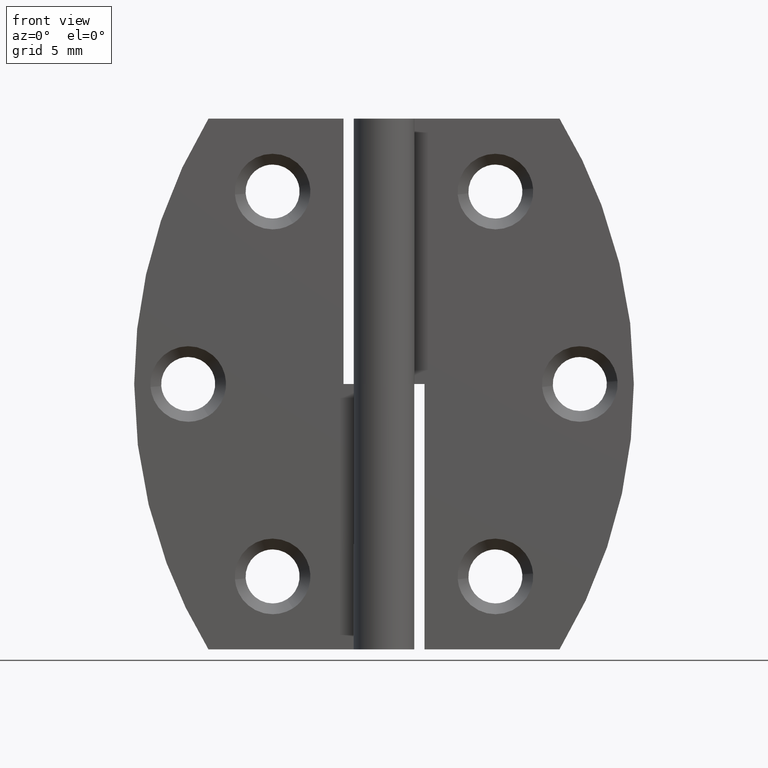
[diagram: clean part render]
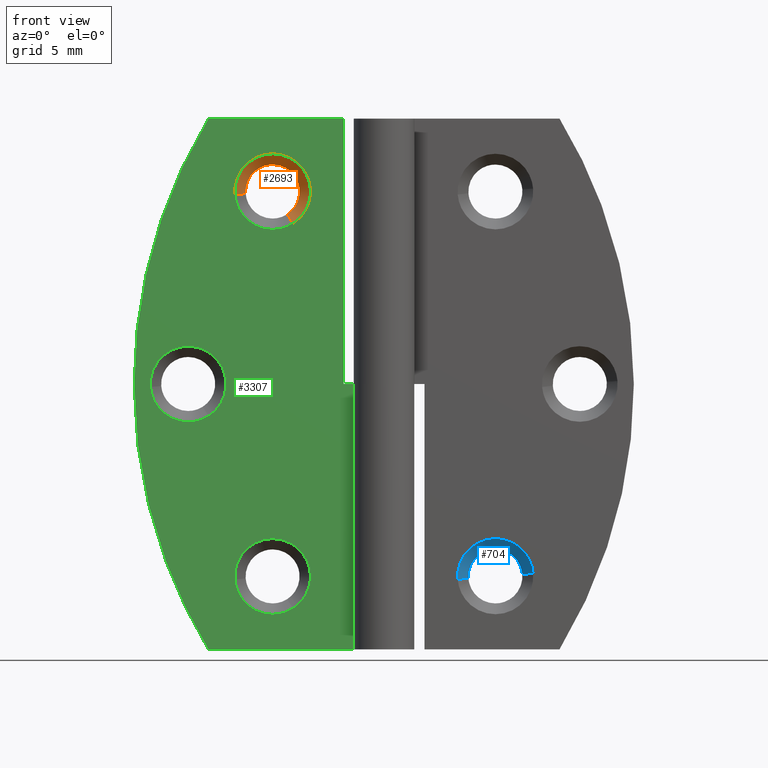
[diagram: same view with three faces highlighted in distinct colors, each labeled with its STEP entity id]
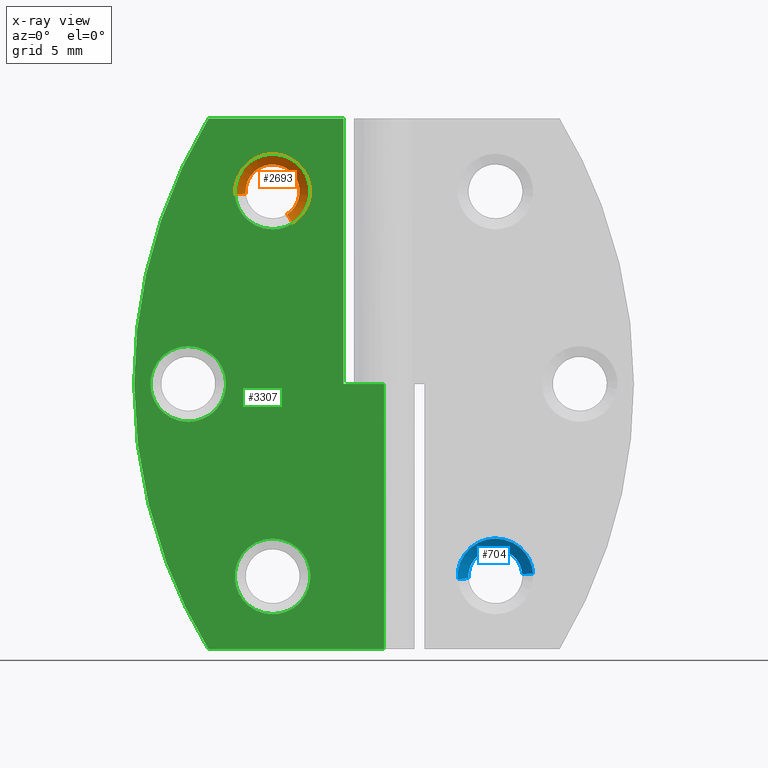
[diagram: x-ray of the same camera — body ghosted, the three highlighted faces saturated]
A machine part, front view with three faces highlighted in distinct colors.
The next image is the same camera in x-ray (body ghosted, the three faces saturated) — at least one of them is partly hidden behind the body in this view.
Their STEP definitions:

[orange] entity #2693 — the highlighted face is a freeform B-spline surface patch.
#2557=CARTESIAN_POINT('',(-7.185055428976516,2.070000000000001,32.230789703248583));
#2558=CARTESIAN_POINT('',(-6.182829668059569,2.070000000000000,32.870199327319853));
#2559=CARTESIAN_POINT('',(-6.276103679208408,2.070000000000001,34.055358009541230));
#2560=CARTESIAN_POINT('',(-6.431452688749542,2.070000000000001,36.029254330332819));
#2561=CARTESIAN_POINT('',(-8.405349009541133,2.070000000000001,35.873905320791692));
#2562=CARTESIAN_POINT('',(-10.379245330332726,2.070000000000001,35.718556311250552));
#2563=CARTESIAN_POINT('',(-10.223896320791590,2.070000000000001,33.744659990458963));
#2564=CARTESIAN_POINT('',(-6.732991837084981,1.229500000000000,31.522214542178048));
#2565=CARTESIAN_POINT('',(-5.305326302405056,1.229500000000000,32.433050322326039));
#2566=CARTESIAN_POINT('',(-5.438194660205712,1.229500000000000,34.121302879500483));
#2567=CARTESIAN_POINT('',(-5.659488539706101,1.229500000000000,36.933108219294773));
#2568=CARTESIAN_POINT('',(-8.471293879500388,1.229500000000000,36.711814339794387));
#2569=CARTESIAN_POINT('',(-11.283099219294677,1.229500000000000,36.490520460294000));
#2570=CARTESIAN_POINT('',(-11.061805339794290,1.229500000000000,33.678715120499710));
#2578=(BOUNDED_SURFACE()B_SPLINE_SURFACE(2,1,((#2557,#2564),(#2558,#2565),(#2559,#2566),(#2560,#2567),(#2561,#2568),(#2562,#2569),(#2563,#2570)),.UNSPECIFIED.,.F.,.F.,.U.)B_SPLINE_SURFACE_WITH_KNOTS((3,2,2,3),(2,2),(0.0,3.177747039271418,7.850904449964681,12.524061860657939),(0.0,1.0),.UNSPECIFIED.)GEOMETRIC_REPRESENTATION_ITEM()RATIONAL_B_SPLINE_SURFACE(((0.872532871172386,0.872532871172386),(0.800832611206852,0.800832611206852),(1.0,1.0),(0.707106781186548,0.707106781186548),(1.0,1.0),(0.707106781186548,0.707106781186548),(1.0,1.0)))REPRESENTATION_ITEM('')SURFACE());
#2579=CARTESIAN_POINT('',(-6.263980947286561,2.050000000000000,34.136077469430496));
#2580=VERTEX_POINT('',#2579);
#2581=CARTESIAN_POINT('',(-7.174298413050167,2.049999999996619,32.213928902303927));
#2582=VERTEX_POINT('',#2581);
#2583=CARTESIAN_POINT('',(-6.263980947286561,2.050000000000000,34.136077469430496));
#2584=CARTESIAN_POINT('',(-6.250000000000001,2.050000000000000,34.018457239422048));
#2585=CARTESIAN_POINT('',(-6.250000000000000,2.050000000000000,33.900009000000097));
#2586=CARTESIAN_POINT('',(-6.250000000000000,2.050000000000000,32.803621688056460));
#2587=CARTESIAN_POINT('',(-7.174298413050168,2.049999999996620,32.213928902303927));
#2595=(BOUNDED_CURVE()B_SPLINE_CURVE(2,(#2583,#2584,#2585,#2586,#2587),.UNSPECIFIED.,.F.,.U.)B_SPLINE_CURVE_WITH_KNOTS((3,2,3),(0.229562473495751,0.250000000000000,0.407950112617498),.UNSPECIFIED.)CURVE()GEOMETRIC_REPRESENTATION_ITEM()RATIONAL_B_SPLINE_CURVE((0.956026754148893,0.976055948310340,1.0,0.814949932414055,0.863729296948715))REPRESENTATION_ITEM(''));
#2596=EDGE_CURVE('',#2580,#2582,#2595,.T.);
#2597=ORIENTED_EDGE('',*,*,#2596,.T.);
#2598=CARTESIAN_POINT('',(-6.744017778316859,1.249999999997908,31.539496863198838));
#2599=VERTEX_POINT('',#2598);
#2600=CARTESIAN_POINT('',(-7.174298413050167,2.049999999996619,32.213928902303927));
#2601=CARTESIAN_POINT('',(-6.744017778316859,1.249999999997908,31.539496863198838));
#2602=QUASI_UNIFORM_CURVE('',1,(#2600,#2601),.UNSPECIFIED.,.F.,.U.);
#2603=EDGE_CURVE('',#2582,#2599,#2602,.T.);
#2604=ORIENTED_EDGE('',*,*,#2603,.T.);
#2605=CARTESIAN_POINT('',(-8.250000000000000,1.250000000000000,36.700009000000087));
#2606=VERTEX_POINT('',#2605);
#2607=CARTESIAN_POINT('',(-8.250000000000000,1.250000000000000,36.700009000000087));
#2608=CARTESIAN_POINT('',(-5.450000000000000,1.250000000000000,36.700009000000094));
#2609=CARTESIAN_POINT('',(-5.450000000000000,1.250000000000000,33.900009000000097));
#2610=CARTESIAN_POINT('',(-5.450000000000000,1.250000000000001,32.365066763209263));
#2611=CARTESIAN_POINT('',(-6.744017778316860,1.249999999997908,31.539496863198842));
#2619=(BOUNDED_CURVE()B_SPLINE_CURVE(2,(#2607,#2608,#2609,#2610,#2611),.UNSPECIFIED.,.F.,.U.)B_SPLINE_CURVE_WITH_KNOTS((3,2,3),(0.0,0.250000000000000,0.407950112623347),.UNSPECIFIED.)CURVE()GEOMETRIC_REPRESENTATION_ITEM()RATIONAL_B_SPLINE_CURVE((1.0,0.707106781186547,1.0,0.814949932407203,0.863729296952327))REPRESENTATION_ITEM(''));
#2620=EDGE_CURVE('',#2606,#2599,#2619,.T.);
#2621=ORIENTED_EDGE('',*,*,#2620,.F.);
#2622=CARTESIAN_POINT('',(-11.041368534459471,1.249999999982987,33.680323531830581));
#2623=VERTEX_POINT('',#2622);
#2624=CARTESIAN_POINT('',(-11.041368534459476,1.249999999982987,33.680323531830581));
#2625=CARTESIAN_POINT('',(-11.050000000000001,1.250000000000000,33.789996700247798));
#2626=CARTESIAN_POINT('',(-11.050000000000001,1.250000000000000,33.900009000000097));
#2627=CARTESIAN_POINT('',(-11.050000000000001,1.250000000000000,36.700009000000094));
#2628=CARTESIAN_POINT('',(-8.250000000000000,1.250000000000000,36.700009000000087));
#2636=(BOUNDED_CURVE()B_SPLINE_CURVE(2,(#2624,#2625,#2626,#2627,#2628),.UNSPECIFIED.,.F.,.U.)B_SPLINE_CURVE_WITH_KNOTS((3,2,3),(0.736331300616773,0.750000000000000,1.0),.UNSPECIFIED.)CURVE()GEOMETRIC_REPRESENTATION_ITEM()RATIONAL_B_SPLINE_CURVE((0.969723356138437,0.983986122562613,1.0,0.707106781186547,1.0))REPRESENTATION_ITEM(''));
#2637=EDGE_CURVE('',#2623,#2606,#2636,.T.);
#2638=ORIENTED_EDGE('',*,*,#2637,.F.);
#2639=CARTESIAN_POINT('',(-10.243834667466841,2.049999999998565,33.743090808533488));
#2640=VERTEX_POINT('',#2639);
#2641=CARTESIAN_POINT('',(-10.243834667466841,2.049999999998565,33.743090808533488));
#2642=CARTESIAN_POINT('',(-11.041368534459471,1.249999999982987,33.680323531830581));
#2643=QUASI_UNIFORM_CURVE('',1,(#2641,#2642),.UNSPECIFIED.,.F.,.U.);
#2644=EDGE_CURVE('',#2640,#2623,#2643,.T.);
#2645=ORIENTED_EDGE('',*,*,#2644,.F.);
#2646=CARTESIAN_POINT('',(-10.246269596835971,2.050000000000000,33.777911920803490));
#2647=VERTEX_POINT('',#2646);
#2648=CARTESIAN_POINT('',(-10.243834667466835,2.049999999998565,33.743090808533481));
#2649=CARTESIAN_POINT('',(-10.245204071766414,2.050000000000001,33.760490739946448));
#2650=CARTESIAN_POINT('',(-10.246269596835969,2.050000000000000,33.777911920803490));
#2658=(BOUNDED_CURVE()B_SPLINE_CURVE(2,(#2648,#2649,#2650),.UNSPECIFIED.,.F.,.U.)B_SPLINE_CURVE_WITH_KNOTS((3,3),(0.736331300630909,0.739332962220032),.UNSPECIFIED.)CURVE()GEOMETRIC_REPRESENTATION_ITEM()RATIONAL_B_SPLINE_CURVE((0.969723356167937,0.972855475540470,0.976072041626189))REPRESENTATION_ITEM(''));
#2659=EDGE_CURVE('',#2640,#2647,#2658,.T.);
#2660=ORIENTED_EDGE('',*,*,#2659,.T.);
#2661=CARTESIAN_POINT('',(-8.250000000000000,2.050000000000000,35.900009000000097));
#2662=VERTEX_POINT('',#2661);
#2663=CARTESIAN_POINT('',(-10.246269596835969,2.050000000000000,33.777911920803490));
#2664=CARTESIAN_POINT('',(-10.249999999999996,2.050000000000001,33.838903473275671));
#2665=CARTESIAN_POINT('',(-10.250000000000000,2.050000000000000,33.900009000000097));
#2666=CARTESIAN_POINT('',(-10.250000000000000,2.050000000000001,35.900009000000104));
#2667=CARTESIAN_POINT('',(-8.250000000000000,2.050000000000000,35.900009000000097));
#2675=(BOUNDED_CURVE()B_SPLINE_CURVE(2,(#2663,#2664,#2665,#2666,#2667),.UNSPECIFIED.,.F.,.U.)B_SPLINE_CURVE_WITH_KNOTS((3,2,3),(0.739332962220032,0.750000000000000,1.0),.UNSPECIFIED.)CURVE()GEOMETRIC_REPRESENTATION_ITEM()RATIONAL_B_SPLINE_CURVE((0.976072041626189,0.987502787877682,1.0,0.707106781186548,1.0))REPRESENTATION_ITEM(''));
#2676=EDGE_CURVE('',#2647,#2662,#2675,.T.);
#2677=ORIENTED_EDGE('',*,*,#2676,.T.);
#2678=CARTESIAN_POINT('',(-8.250000000000000,2.050000000000000,35.900009000000097));
#2679=CARTESIAN_POINT('',(-6.473650948307835,2.050000000000000,35.900009000000111));
#2680=CARTESIAN_POINT('',(-6.263980947286561,2.050000000000000,34.136077469430511));
#2688=(BOUNDED_CURVE()B_SPLINE_CURVE(2,(#2678,#2679,#2680),.UNSPECIFIED.,.F.,.U.)B_SPLINE_CURVE_WITH_KNOTS((3,3),(0.0,0.229562473495750),.UNSPECIFIED.)CURVE()GEOMETRIC_REPRESENTATION_ITEM()RATIONAL_B_SPLINE_CURVE((1.0,0.731050832876207,0.956026754148893))REPRESENTATION_ITEM(''));
#2689=EDGE_CURVE('',#2662,#2580,#2688,.T.);
#2690=ORIENTED_EDGE('',*,*,#2689,.T.);
#2691=EDGE_LOOP('',(#2597,#2604,#2621,#2638,#2645,#2660,#2677,#2690));
#2692=FACE_OUTER_BOUND('',#2691,.T.);
#2693=ADVANCED_FACE('',(#2692),#2578,.F.);

[blue] entity #704 — the highlighted face is a freeform B-spline surface patch.
#509=CARTESIAN_POINT('',(6.253730392787248,2.049999999999717,5.277905090464125));
#510=VERTEX_POINT('',#509);
#554=CARTESIAN_POINT('',(10.243834667485380,2.049999999951914,5.556920191826806));
#555=VERTEX_POINT('',#554);
#571=CARTESIAN_POINT('',(8.250000000000101,2.050000000000000,7.400002000000000));
#572=VERTEX_POINT('',#571);
#573=CARTESIAN_POINT('',(8.250000000000101,2.050000000000000,7.400002000000000));
#574=CARTESIAN_POINT('',(10.098780982633171,2.050000000000000,7.400001999999998));
#575=CARTESIAN_POINT('',(10.243834667485384,2.049999999951914,5.556920191826806));
#583=(BOUNDED_CURVE()B_SPLINE_CURVE(2,(#573,#574,#575),.UNSPECIFIED.,.F.,.U.)B_SPLINE_CURVE_WITH_KNOTS((3,3),(0.0,0.236331300569601),.UNSPECIFIED.)CURVE()GEOMETRIC_REPRESENTATION_ITEM()RATIONAL_B_SPLINE_CURVE((1.0,0.723120658679201,0.969723356039992))REPRESENTATION_ITEM(''));
#584=EDGE_CURVE('',#572,#555,#583,.T.);
#586=CARTESIAN_POINT('',(6.253730392787248,2.049999999999717,5.277905090464125));
#587=CARTESIAN_POINT('',(6.250000000000101,2.050000000000000,5.338896558407419));
#588=CARTESIAN_POINT('',(6.250000000000101,2.050000000000000,5.400002000000000));
#589=CARTESIAN_POINT('',(6.250000000000101,2.050000000000001,7.400001999999999));
#590=CARTESIAN_POINT('',(8.250000000000101,2.050000000000000,7.400002000000000));
#598=(BOUNDED_CURVE()B_SPLINE_CURVE(2,(#586,#587,#588,#589,#590),.UNSPECIFIED.,.F.,.U.)B_SPLINE_CURVE_WITH_KNOTS((3,2,3),(0.739332976895560,0.750000000000000,1.0),.UNSPECIFIED.)CURVE()GEOMETRIC_REPRESENTATION_ITEM()RATIONAL_B_SPLINE_CURVE((0.976072073078641,0.987502805071133,1.0,0.707106781186548,1.0))REPRESENTATION_ITEM(''));
#599=EDGE_CURVE('',#510,#572,#598,.T.);
#638=CARTESIAN_POINT('',(10.223896320791690,2.070000000000001,5.555351009541134));
#639=CARTESIAN_POINT('',(10.068547311250558,2.070000000000001,7.529247330332725));
#640=CARTESIAN_POINT('',(8.094650990458968,2.070000000000001,7.373898320791591));
#641=CARTESIAN_POINT('',(6.120754669667377,2.070000000000001,7.218549311250457));
#642=CARTESIAN_POINT('',(6.276103679208510,2.070000000000001,5.244652990458866));
#643=CARTESIAN_POINT('',(11.061805339794390,1.229500000000000,5.621295879500388));
#644=CARTESIAN_POINT('',(10.840511460293998,1.229500000000000,8.433101219294674));
#645=CARTESIAN_POINT('',(8.028706120499713,1.229500000000000,8.211807339794286));
#646=CARTESIAN_POINT('',(5.216900780705428,1.229500000000000,7.990513460293896));
#647=CARTESIAN_POINT('',(5.438194660205816,1.229500000000000,5.178708120499612));
#655=(BOUNDED_SURFACE()B_SPLINE_SURFACE(2,1,((#638,#643),(#639,#644),(#640,#645),(#641,#646),(#642,#647)),.UNSPECIFIED.,.F.,.F.,.U.)B_SPLINE_SURFACE_WITH_KNOTS((3,2,3),(2,2),(0.0,4.673157410693258,9.346314821386516),(0.0,1.0),.UNSPECIFIED.)GEOMETRIC_REPRESENTATION_ITEM()RATIONAL_B_SPLINE_SURFACE(((1.0,1.0),(0.707106781186548,0.707106781186548),(1.0,1.0),(0.707106781186548,0.707106781186548),(1.0,1.0)))REPRESENTATION_ITEM('')SURFACE());
#656=ORIENTED_EDGE('',*,*,#584,.T.);
#657=CARTESIAN_POINT('',(11.041368534459570,1.249999999982986,5.619687468169518));
#658=VERTEX_POINT('',#657);
#659=CARTESIAN_POINT('',(10.243834667485380,2.049999999951914,5.556920191826806));
#660=CARTESIAN_POINT('',(11.041368534459570,1.249999999982986,5.619687468169518));
#661=QUASI_UNIFORM_CURVE('',1,(#659,#660),.UNSPECIFIED.,.F.,.U.);
#662=EDGE_CURVE('',#555,#658,#661,.T.);
#663=ORIENTED_EDGE('',*,*,#662,.T.);
#664=CARTESIAN_POINT('',(8.250000000000101,1.250000000000000,8.200002000000000));
#665=VERTEX_POINT('',#664);
#666=CARTESIAN_POINT('',(8.250000000000101,1.250000000000000,8.200002000000000));
#667=CARTESIAN_POINT('',(10.838293376400850,1.250000000000000,8.200002000000000));
#668=CARTESIAN_POINT('',(11.041368534459572,1.249999999982986,5.619687468169517));
#676=(BOUNDED_CURVE()B_SPLINE_CURVE(2,(#666,#667,#668),.UNSPECIFIED.,.F.,.U.)B_SPLINE_CURVE_WITH_KNOTS((3,3),(0.0,0.236331300616773),.UNSPECIFIED.)CURVE()GEOMETRIC_REPRESENTATION_ITEM()RATIONAL_B_SPLINE_CURVE((1.0,0.723120658623934,0.969723356138438))REPRESENTATION_ITEM(''));
#677=EDGE_CURVE('',#665,#658,#676,.T.);
#678=ORIENTED_EDGE('',*,*,#677,.F.);
#679=CARTESIAN_POINT('',(5.458631465540631,1.249999999982986,5.180316531830481));
#680=VERTEX_POINT('',#679);
#681=CARTESIAN_POINT('',(5.458631465540631,1.249999999982986,5.180316531830481));
#682=CARTESIAN_POINT('',(5.450000000000101,1.250000000000000,5.289989700247703));
#683=CARTESIAN_POINT('',(5.450000000000101,1.250000000000000,5.400002000000000));
#684=CARTESIAN_POINT('',(5.450000000000101,1.250000000000000,8.200002000000000));
#685=CARTESIAN_POINT('',(8.250000000000101,1.250000000000000,8.200002000000000));
#693=(BOUNDED_CURVE()B_SPLINE_CURVE(2,(#681,#682,#683,#684,#685),.UNSPECIFIED.,.F.,.U.)B_SPLINE_CURVE_WITH_KNOTS((3,2,3),(0.736331300616773,0.750000000000000,1.0),.UNSPECIFIED.)CURVE()GEOMETRIC_REPRESENTATION_ITEM()RATIONAL_B_SPLINE_CURVE((0.969723356138437,0.983986122562613,1.0,0.707106781186547,1.0))REPRESENTATION_ITEM(''));
#694=EDGE_CURVE('',#680,#665,#693,.T.);
#695=ORIENTED_EDGE('',*,*,#694,.F.);
#696=CARTESIAN_POINT('',(6.253730392787248,2.049999999999717,5.277905090464125));
#697=CARTESIAN_POINT('',(5.458631465540631,1.249999999982986,5.180316531830481));
#698=QUASI_UNIFORM_CURVE('',1,(#696,#697),.UNSPECIFIED.,.F.,.U.);
#699=EDGE_CURVE('',#510,#680,#698,.T.);
#700=ORIENTED_EDGE('',*,*,#699,.F.);
#701=ORIENTED_EDGE('',*,*,#599,.T.);
#702=EDGE_LOOP('',(#656,#663,#678,#695,#700,#701));
#703=FACE_OUTER_BOUND('',#702,.T.);
#704=ADVANCED_FACE('',(#703),#655,.F.);

[green] entity #3307 — the highlighted face is a freeform B-spline surface patch.
#1910=CARTESIAN_POINT('',(-6.744017778316858,1.249999999997908,3.039489863198744));
#1911=VERTEX_POINT('',#1910);
#1917=CARTESIAN_POINT('',(-8.250000000000000,1.250000000000000,8.200002000000000));
#1918=VERTEX_POINT('',#1917);
#1919=CARTESIAN_POINT('',(-8.250000000000000,1.250000000000000,8.200002000000000));
#1920=CARTESIAN_POINT('',(-5.450000000000000,1.250000000000000,8.200002000000000));
#1921=CARTESIAN_POINT('',(-5.450000000000000,1.250000000000000,5.400002000000000));
#1922=CARTESIAN_POINT('',(-5.450000000000000,1.250000000000001,3.865059763209169));
#1923=CARTESIAN_POINT('',(-6.744017778316858,1.249999999997908,3.039489863198743));
#1931=(BOUNDED_CURVE()B_SPLINE_CURVE(2,(#1919,#1920,#1921,#1922,#1923),.UNSPECIFIED.,.F.,.U.)B_SPLINE_CURVE_WITH_KNOTS((3,2,3),(0.0,0.250000000000000,0.407950112623347),.UNSPECIFIED.)CURVE()GEOMETRIC_REPRESENTATION_ITEM()RATIONAL_B_SPLINE_CURVE((1.0,0.707106781186547,1.0,0.814949932407203,0.863729296952327))REPRESENTATION_ITEM(''));
#1932=EDGE_CURVE('',#1918,#1911,#1931,.T.);
#1934=CARTESIAN_POINT('',(-11.041368534459471,1.249999999982987,5.180316531830481));
#1935=VERTEX_POINT('',#1934);
#1936=CARTESIAN_POINT('',(-11.041368534459473,1.249999999982986,5.180316531830482));
#1937=CARTESIAN_POINT('',(-11.049999999999997,1.250000000000000,5.289989700247704));
#1938=CARTESIAN_POINT('',(-11.050000000000001,1.250000000000000,5.400002000000000));
#1939=CARTESIAN_POINT('',(-11.050000000000001,1.250000000000000,8.200002000000000));
#1940=CARTESIAN_POINT('',(-8.250000000000000,1.250000000000000,8.200002000000000));
#1948=(BOUNDED_CURVE()B_SPLINE_CURVE(2,(#1936,#1937,#1938,#1939,#1940),.UNSPECIFIED.,.F.,.U.)B_SPLINE_CURVE_WITH_KNOTS((3,2,3),(0.736331300616773,0.750000000000000,1.0),.UNSPECIFIED.)CURVE()GEOMETRIC_REPRESENTATION_ITEM()RATIONAL_B_SPLINE_CURVE((0.969723356138438,0.983986122562613,1.0,0.707106781186547,1.0))REPRESENTATION_ITEM(''));
#1949=EDGE_CURVE('',#1935,#1918,#1948,.T.);
#2053=CARTESIAN_POINT('',(-8.250000000000000,1.250000000000000,2.600002000000000));
#2054=VERTEX_POINT('',#2053);
#2055=CARTESIAN_POINT('',(-8.250000000000000,1.250000000000000,2.600002000000000));
#2056=CARTESIAN_POINT('',(-10.838293376400735,1.250000000000000,2.600002000000000));
#2057=CARTESIAN_POINT('',(-11.041368534459471,1.249999999982986,5.180316531830481));
#2065=(BOUNDED_CURVE()B_SPLINE_CURVE(2,(#2055,#2056,#2057),.UNSPECIFIED.,.F.,.U.)B_SPLINE_CURVE_WITH_KNOTS((3,3),(0.500000000000000,0.736331300616772),.UNSPECIFIED.)CURVE()GEOMETRIC_REPRESENTATION_ITEM()RATIONAL_B_SPLINE_CURVE((1.0,0.723120658623936,0.969723356138436))REPRESENTATION_ITEM(''));
#2066=EDGE_CURVE('',#2054,#1935,#2065,.T.);
#2068=CARTESIAN_POINT('',(-6.744017778316858,1.249999999997908,3.039489863198743));
#2069=CARTESIAN_POINT('',(-7.432881444896037,1.250000000000000,2.600002000000000));
#2070=CARTESIAN_POINT('',(-8.250000000000000,1.250000000000000,2.600002000000000));
#2078=(BOUNDED_CURVE()B_SPLINE_CURVE(2,(#2068,#2069,#2070),.UNSPECIFIED.,.F.,.U.)B_SPLINE_CURVE_WITH_KNOTS((3,3),(0.407950112623347,0.500000000000000),.UNSPECIFIED.)CURVE()GEOMETRIC_REPRESENTATION_ITEM()RATIONAL_B_SPLINE_CURVE((0.863729296952327,0.892156848779345,1.0))REPRESENTATION_ITEM(''));
#2079=EDGE_CURVE('',#1911,#2054,#2078,.T.);
#2254=CARTESIAN_POINT('',(-12.994017778316859,1.249999999997906,17.289489863198749));
#2255=VERTEX_POINT('',#2254);
#2261=CARTESIAN_POINT('',(-14.500000000000000,1.250000000000000,22.450002000000001));
#2262=VERTEX_POINT('',#2261);
#2263=CARTESIAN_POINT('',(-14.500000000000000,1.250000000000000,22.450002000000001));
#2264=CARTESIAN_POINT('',(-11.700000000000001,1.250000000000000,22.450001999999994));
#2265=CARTESIAN_POINT('',(-11.699999999999999,1.250000000000000,19.650002000000001));
#2266=CARTESIAN_POINT('',(-11.699999999999999,1.250000000000000,18.115059763209164));
#2267=CARTESIAN_POINT('',(-12.994017778316858,1.249999999997906,17.289489863198746));
#2275=(BOUNDED_CURVE()B_SPLINE_CURVE(2,(#2263,#2264,#2265,#2266,#2267),.UNSPECIFIED.,.F.,.U.)B_SPLINE_CURVE_WITH_KNOTS((3,2,3),(0.0,0.250000000000000,0.407950112623347),.UNSPECIFIED.)CURVE()GEOMETRIC_REPRESENTATION_ITEM()RATIONAL_B_SPLINE_CURVE((1.0,0.707106781186547,1.0,0.814949932407203,0.863729296952327))REPRESENTATION_ITEM(''));
#2276=EDGE_CURVE('',#2262,#2255,#2275,.T.);
#2278=CARTESIAN_POINT('',(-17.291368534459469,1.249999999982986,19.430316531830481));
#2279=VERTEX_POINT('',#2278);
#2280=CARTESIAN_POINT('',(-17.291368534459473,1.249999999982987,19.430316531830478));
#2281=CARTESIAN_POINT('',(-17.300000000000001,1.250000000000000,19.539989700247709));
#2282=CARTESIAN_POINT('',(-17.300000000000001,1.250000000000000,19.650002000000001));
#2283=CARTESIAN_POINT('',(-17.299999999999997,1.250000000000000,22.450001999999994));
#2284=CARTESIAN_POINT('',(-14.500000000000000,1.250000000000000,22.450002000000001));
#2292=(BOUNDED_CURVE()B_SPLINE_CURVE(2,(#2280,#2281,#2282,#2283,#2284),.UNSPECIFIED.,.F.,.U.)B_SPLINE_CURVE_WITH_KNOTS((3,2,3),(0.736331300616773,0.750000000000000,1.0),.UNSPECIFIED.)CURVE()GEOMETRIC_REPRESENTATION_ITEM()RATIONAL_B_SPLINE_CURVE((0.969723356138437,0.983986122562613,1.0,0.707106781186547,1.0))REPRESENTATION_ITEM(''));
#2293=EDGE_CURVE('',#2279,#2262,#2292,.T.);
#2397=CARTESIAN_POINT('',(-14.500000000000000,1.250000000000000,16.850002000000000));
#2398=VERTEX_POINT('',#2397);
#2399=CARTESIAN_POINT('',(-14.500000000000000,1.250000000000000,16.850002000000000));
#2400=CARTESIAN_POINT('',(-17.088293376400742,1.250000000000000,16.850002000000011));
#2401=CARTESIAN_POINT('',(-17.291368534459476,1.249999999982986,19.430316531830485));
#2409=(BOUNDED_CURVE()B_SPLINE_CURVE(2,(#2399,#2400,#2401),.UNSPECIFIED.,.F.,.U.)B_SPLINE_CURVE_WITH_KNOTS((3,3),(0.500000000000000,0.736331300616772),.UNSPECIFIED.)CURVE()GEOMETRIC_REPRESENTATION_ITEM()RATIONAL_B_SPLINE_CURVE((1.0,0.723120658623936,0.969723356138436))REPRESENTATION_ITEM(''));
#2410=EDGE_CURVE('',#2398,#2279,#2409,.T.);
#2412=CARTESIAN_POINT('',(-12.994017778316858,1.249999999997906,17.289489863198746));
#2413=CARTESIAN_POINT('',(-13.682881444896035,1.250000000000000,16.850002000000007));
#2414=CARTESIAN_POINT('',(-14.500000000000000,1.250000000000000,16.850002000000000));
#2422=(BOUNDED_CURVE()B_SPLINE_CURVE(2,(#2412,#2413,#2414),.UNSPECIFIED.,.F.,.U.)B_SPLINE_CURVE_WITH_KNOTS((3,3),(0.407950112623347,0.500000000000000),.UNSPECIFIED.)CURVE()GEOMETRIC_REPRESENTATION_ITEM()RATIONAL_B_SPLINE_CURVE((0.863729296952327,0.892156848779345,1.0))REPRESENTATION_ITEM(''));
#2423=EDGE_CURVE('',#2255,#2398,#2422,.T.);
#2598=CARTESIAN_POINT('',(-6.744017778316859,1.249999999997908,31.539496863198838));
#2599=VERTEX_POINT('',#2598);
#2605=CARTESIAN_POINT('',(-8.250000000000000,1.250000000000000,36.700009000000087));
#2606=VERTEX_POINT('',#2605);
#2607=CARTESIAN_POINT('',(-8.250000000000000,1.250000000000000,36.700009000000087));
#2608=CARTESIAN_POINT('',(-5.450000000000000,1.250000000000000,36.700009000000094));
#2609=CARTESIAN_POINT('',(-5.450000000000000,1.250000000000000,33.900009000000097));
#2610=CARTESIAN_POINT('',(-5.450000000000000,1.250000000000001,32.365066763209263));
#2611=CARTESIAN_POINT('',(-6.744017778316860,1.249999999997908,31.539496863198842));
#2619=(BOUNDED_CURVE()B_SPLINE_CURVE(2,(#2607,#2608,#2609,#2610,#2611),.UNSPECIFIED.,.F.,.U.)B_SPLINE_CURVE_WITH_KNOTS((3,2,3),(0.0,0.250000000000000,0.407950112623347),.UNSPECIFIED.)CURVE()GEOMETRIC_REPRESENTATION_ITEM()RATIONAL_B_SPLINE_CURVE((1.0,0.707106781186547,1.0,0.814949932407203,0.863729296952327))REPRESENTATION_ITEM(''));
#2620=EDGE_CURVE('',#2606,#2599,#2619,.T.);
#2622=CARTESIAN_POINT('',(-11.041368534459471,1.249999999982987,33.680323531830581));
#2623=VERTEX_POINT('',#2622);
#2624=CARTESIAN_POINT('',(-11.041368534459476,1.249999999982987,33.680323531830581));
#2625=CARTESIAN_POINT('',(-11.050000000000001,1.250000000000000,33.789996700247798));
#2626=CARTESIAN_POINT('',(-11.050000000000001,1.250000000000000,33.900009000000097));
#2627=CARTESIAN_POINT('',(-11.050000000000001,1.250000000000000,36.700009000000094));
#2628=CARTESIAN_POINT('',(-8.250000000000000,1.250000000000000,36.700009000000087));
#2636=(BOUNDED_CURVE()B_SPLINE_CURVE(2,(#2624,#2625,#2626,#2627,#2628),.UNSPECIFIED.,.F.,.U.)B_SPLINE_CURVE_WITH_KNOTS((3,2,3),(0.736331300616773,0.750000000000000,1.0),.UNSPECIFIED.)CURVE()GEOMETRIC_REPRESENTATION_ITEM()RATIONAL_B_SPLINE_CURVE((0.969723356138437,0.983986122562613,1.0,0.707106781186547,1.0))REPRESENTATION_ITEM(''));
#2637=EDGE_CURVE('',#2623,#2606,#2636,.T.);
#2741=CARTESIAN_POINT('',(-8.250000000000000,1.250000000000000,31.100009000000099));
#2742=VERTEX_POINT('',#2741);
#2743=CARTESIAN_POINT('',(-8.250000000000000,1.250000000000000,31.100009000000099));
#2744=CARTESIAN_POINT('',(-10.838293376400735,1.250000000000000,31.100009000000103));
#2745=CARTESIAN_POINT('',(-11.041368534459471,1.249999999982987,33.680323531830581));
#2753=(BOUNDED_CURVE()B_SPLINE_CURVE(2,(#2743,#2744,#2745),.UNSPECIFIED.,.F.,.U.)B_SPLINE_CURVE_WITH_KNOTS((3,3),(0.500000000000000,0.736331300616772),.UNSPECIFIED.)CURVE()GEOMETRIC_REPRESENTATION_ITEM()RATIONAL_B_SPLINE_CURVE((1.0,0.723120658623936,0.969723356138436))REPRESENTATION_ITEM(''));
#2754=EDGE_CURVE('',#2742,#2623,#2753,.T.);
#2756=CARTESIAN_POINT('',(-6.744017778316860,1.249999999997908,31.539496863198842));
#2757=CARTESIAN_POINT('',(-7.432881444896038,1.250000000000000,31.100009000000096));
#2758=CARTESIAN_POINT('',(-8.250000000000000,1.250000000000000,31.100009000000099));
#2766=(BOUNDED_CURVE()B_SPLINE_CURVE(2,(#2756,#2757,#2758),.UNSPECIFIED.,.F.,.U.)B_SPLINE_CURVE_WITH_KNOTS((3,3),(0.407950112623347,0.500000000000000),.UNSPECIFIED.)CURVE()GEOMETRIC_REPRESENTATION_ITEM()RATIONAL_B_SPLINE_CURVE((0.863729296952327,0.892156848779345,1.0))REPRESENTATION_ITEM(''));
#2767=EDGE_CURVE('',#2599,#2742,#2766,.T.);
#2932=CARTESIAN_POINT('',(-12.999995047973600,1.249999999999972,0.0));
#2933=VERTEX_POINT('',#2932);
#2939=CARTESIAN_POINT('',(-12.999995655354020,1.250000000000000,39.300003000000103));
#2940=VERTEX_POINT('',#2939);
#2941=CARTESIAN_POINT('',(-12.999995655354031,1.249999999999972,39.300003000000103));
#2942=CARTESIAN_POINT('',(-24.935022729928775,1.249999999999972,19.650001315544539));
#2943=CARTESIAN_POINT('',(-12.999995047973609,1.249999999999972,-3.469447E-015));
#2951=(BOUNDED_CURVE()B_SPLINE_CURVE(2,(#2941,#2942,#2943),.UNSPECIFIED.,.F.,.U.)CURVE()GEOMETRIC_REPRESENTATION_ITEM()QUASI_UNIFORM_CURVE()RATIONAL_B_SPLINE_CURVE((1.0,0.854697405180328,1.0))REPRESENTATION_ITEM(''));
#2952=EDGE_CURVE('',#2940,#2933,#2951,.T.);
#2967=CARTESIAN_POINT('',(-3.0,1.249999999999972,19.650002000000001));
#2968=VERTEX_POINT('',#2967);
#2983=CARTESIAN_POINT('',(-3.0,1.249999999999972,39.300003000000103));
#2984=VERTEX_POINT('',#2983);
#2990=CARTESIAN_POINT('',(-3.0,1.249999999999972,19.650002000000001));
#2991=CARTESIAN_POINT('',(-3.0,1.249999999999972,39.300003000000103));
#2992=QUASI_UNIFORM_CURVE('',1,(#2990,#2991),.UNSPECIFIED.,.F.,.U.);
#2993=EDGE_CURVE('',#2968,#2984,#2992,.T.);
#3005=CARTESIAN_POINT('',(0.0,1.250000000000000,19.650002000000001));
#3006=VERTEX_POINT('',#3005);
#3060=CARTESIAN_POINT('',(0.0,1.250000000000000,19.650002000000001));
#3061=CARTESIAN_POINT('',(-3.0,1.249999999999972,19.650002000000001));
#3062=QUASI_UNIFORM_CURVE('',1,(#3060,#3061),.UNSPECIFIED.,.F.,.U.);
#3063=EDGE_CURVE('',#3006,#2968,#3062,.T.);
#3109=CARTESIAN_POINT('',(0.0,1.250000000000000,0.0));
#3110=VERTEX_POINT('',#3109);
#3130=CARTESIAN_POINT('',(-12.999995047973600,1.249999999999972,0.0));
#3131=CARTESIAN_POINT('',(0.0,1.250000000000000,0.0));
#3132=QUASI_UNIFORM_CURVE('',1,(#3130,#3131),.UNSPECIFIED.,.F.,.U.);
#3133=EDGE_CURVE('',#2933,#3110,#3132,.T.);
#3149=CARTESIAN_POINT('',(-12.999995655354020,1.250000000000000,39.300003000000103));
#3150=CARTESIAN_POINT('',(-3.0,1.249999999999972,39.300003000000103));
#3151=QUASI_UNIFORM_CURVE('',1,(#3149,#3150),.UNSPECIFIED.,.F.,.U.);
#3152=EDGE_CURVE('',#2940,#2984,#3151,.T.);
#3267=CARTESIAN_POINT('',(0.0,1.250000000000000,19.650002000000001));
#3268=CARTESIAN_POINT('',(0.0,1.250000000000000,0.0));
#3269=QUASI_UNIFORM_CURVE('',1,(#3267,#3268),.UNSPECIFIED.,.F.,.U.);
#3270=EDGE_CURVE('',#3006,#3110,#3269,.T.);
#3276=CARTESIAN_POINT('',(-19.424070938008128,1.250000000000000,-1.963035073678974));
#3277=CARTESIAN_POINT('',(-19.424070938008128,1.250000000000000,41.263039127787302));
#3278=CARTESIAN_POINT('',(0.924075268813850,1.250000000000000,-1.963035073678974));
#3279=CARTESIAN_POINT('',(0.924075268813850,1.250000000000000,41.263039127787302));
#3280=B_SPLINE_SURFACE_WITH_KNOTS('',1,1,((#3276,#3278),(#3277,#3279)),.UNSPECIFIED.,.F.,.F.,.U.,(2,2),(2,2),(0.0,43.226074201466282),(0.0,20.348146206821980),.UNSPECIFIED.);
#3281=ORIENTED_EDGE('',*,*,#2952,.T.);
#3282=ORIENTED_EDGE('',*,*,#3133,.T.);
#3283=ORIENTED_EDGE('',*,*,#3270,.F.);
#3284=ORIENTED_EDGE('',*,*,#3063,.T.);
#3285=ORIENTED_EDGE('',*,*,#2993,.T.);
#3286=ORIENTED_EDGE('',*,*,#3152,.F.);
#3287=EDGE_LOOP('',(#3281,#3282,#3283,#3284,#3285,#3286));
#3288=FACE_OUTER_BOUND('',#3287,.T.);
#3289=ORIENTED_EDGE('',*,*,#2754,.T.);
#3290=ORIENTED_EDGE('',*,*,#2637,.T.);
#3291=ORIENTED_EDGE('',*,*,#2620,.T.);
#3292=ORIENTED_EDGE('',*,*,#2767,.T.);
#3293=EDGE_LOOP('',(#3289,#3290,#3291,#3292));
#3294=FACE_BOUND('',#3293,.T.);
#3295=ORIENTED_EDGE('',*,*,#2410,.T.);
#3296=ORIENTED_EDGE('',*,*,#2293,.T.);
#3297=ORIENTED_EDGE('',*,*,#2276,.T.);
#3298=ORIENTED_EDGE('',*,*,#2423,.T.);
#3299=EDGE_LOOP('',(#3295,#3296,#3297,#3298));
#3300=FACE_BOUND('',#3299,.T.);
#3301=ORIENTED_EDGE('',*,*,#2066,.T.);
#3302=ORIENTED_EDGE('',*,*,#1949,.T.);
#3303=ORIENTED_EDGE('',*,*,#1932,.T.);
#3304=ORIENTED_EDGE('',*,*,#2079,.T.);
#3305=EDGE_LOOP('',(#3301,#3302,#3303,#3304));
#3306=FACE_BOUND('',#3305,.T.);
#3307=ADVANCED_FACE('',(#3288,#3294,#3300,#3306),#3280,.F.);